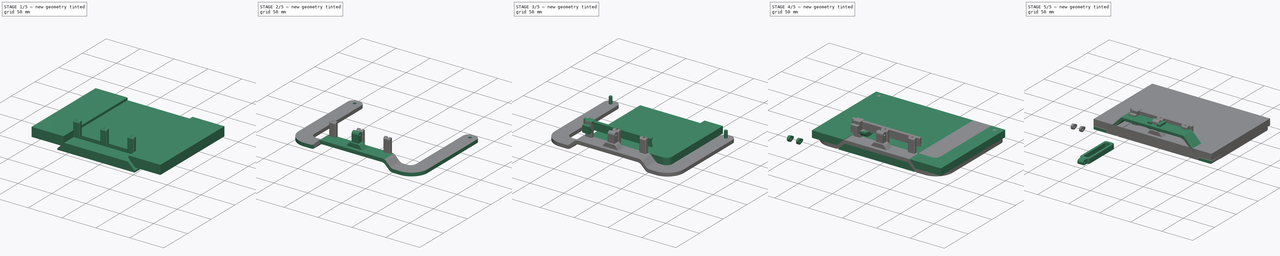
[diagram: build sequence overview — one tinted view per stage of 5, left to right]
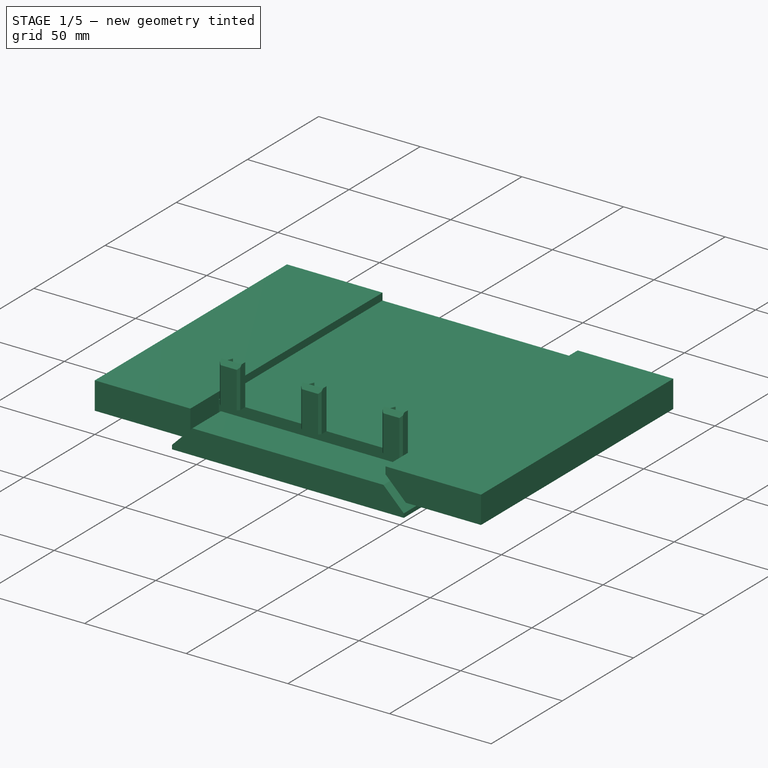
[diagram: stage 1 of 5 — iso view after this stage's code; geometry added in this stage tinted green]
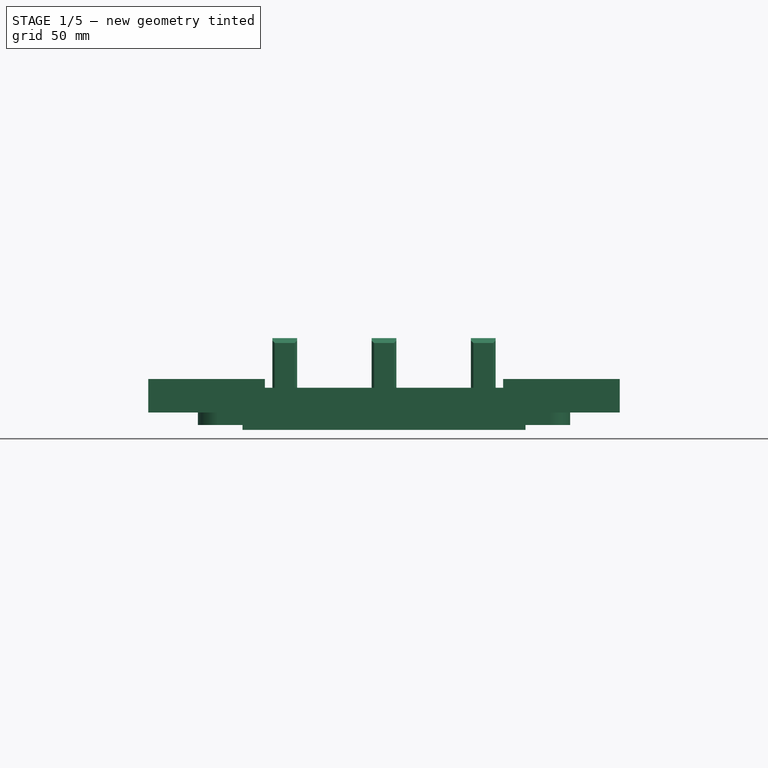
[diagram: stage 1 of 5 — front view after this stage's code; geometry added in this stage tinted green]
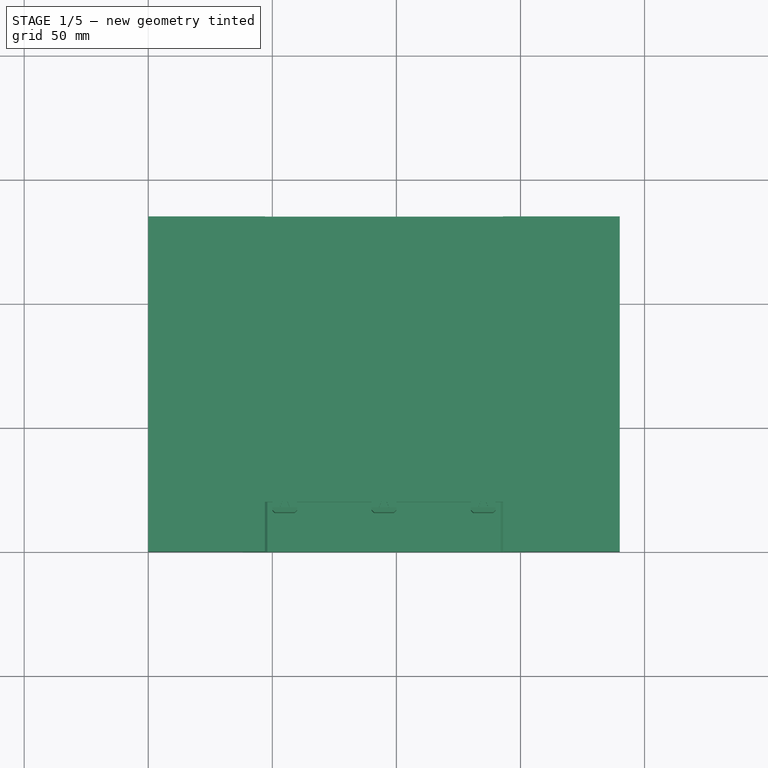
[diagram: stage 1 of 5 — top view after this stage's code; geometry added in this stage tinted green]
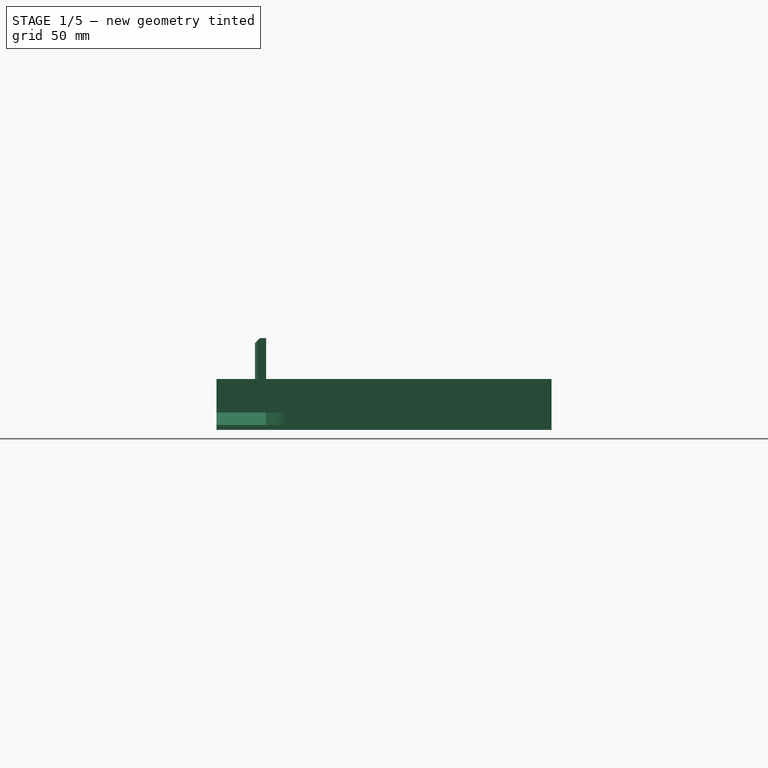
[diagram: stage 1 of 5 — right view after this stage's code; geometry added in this stage tinted green]
FCSTD DOCUMENT  (FreeCAD 1.1R44227 +322 (Git))
Label: Bed Handle with PiCam Mount and LED Fixture
License: All rights reserved
LicenseURL: http://en.wikipedia.org/wiki/All_rights_reserved
objects: Part::Box×32, Part::FeaturePython×23, Part::Fillet×20, Part::Chamfer×18, Part::Cylinder×6, Part::Feature×6, Part::Cut×6, Sketcher::SketchObject×3, Part::Face×3, App::DocumentObjectGroup×3, Part::MultiFuse×2, Part::Compound×2
note: 124 computed .brp shape members not serialized (recipe doc carries the construction recipe); baked Part::Feature solids carry a one-line shape summary decoded from their .brp

FEATURE [Part::Box] Box002  label="Cube002"
  AttacherType = Attacher::AttachEngine3D
  Height = 12
  Length = 114
  Placement = pos=(38,0,-2) rot=(0,0,1;0rad)
  Width = 135
FEATURE [Part::Box] Box003  label="Cube003"
  AttacherType = Attacher::AttachEngine3D
  Height = 13.5
  Length = 47
  Placement = pos=(0,0,5) rot=(0,0,1;0rad)
  Width = 135
FEATURE [Part::Box] Box004  label="Cube004"
  AttacherType = Attacher::AttachEngine3D
  Height = 13.5
  Length = 47
  Placement = pos=(143,0,5) rot=(0,0,1;0rad)
  Width = 135
FEATURE [Part::Box] Box005  label="Cube005"
  AttacherType = Attacher::AttachEngine3D
  Height = 15
  Length = 150
  Placement = pos=(20,20,0) rot=(0,0,1;0rad)
  Width = 115
FEATURE [Part::Box] Box019  label="Cube019"
  AttacherType = Attacher::AttachEngine3D
  Height = 20
  Length = 10
  Placement = pos=(50,15.5,15) rot=(0,0,1;0rad)
  Width = 4.5
FEATURE [Part::Chamfer] Chamfer024
  Base = -> Box004
  EdgeLinks = -> Box004 [Edge4]
  Edges = 1 edges r=10: [Edge4]
FEATURE [Part::Chamfer] Chamfer
  Base = -> Box002
  EdgeLinks = -> Box002 [Edge2,Edge6]
  Edges = 2 edges r=10: [Edge2,Edge6]
FEATURE [Part::Fillet] Fillet
  Base = -> Box005
  EdgeLinks = -> Box005 [Edge1,Edge5]
  Edges = 2 edges r=8: [Edge1,Edge5]
FEATURE [Part::Chamfer] Chamfer025
  Base = -> Box019
  EdgeLinks = -> Box019 [Edge1,Edge5,Edge10]
  Edges = 3 edges: [Edge1 r=1,Edge5 r=1,Edge10 r=2]
FEATURE [Part::Box] Box024  label="Cube024"
  AttacherType = Attacher::AttachEngine3D
  Height = 6
  Length = 4
  Placement = pos=(53,17.5,29) rot=(0,0,1;0rad)
  Width = 2.5
FEATURE [Part::Chamfer] Chamfer028
  Base = -> Box024
  EdgeLinks = -> Box024 [Edge3,Edge7]
  Edges = 2 edges: [Edge3 r1=2.49 r2=1,Edge7 r1=2.49 r2=1]
FEATURE [Part::Cut] Cut001006
  Base = -> Chamfer025
  Tool = -> Chamfer028
FEATURE [Part::Box] Box034  label="Cube034"
  AttacherType = Attacher::AttachEngine3D
  Height = 20
  Length = 10
  Placement = pos=(50,15.5,15) rot=(0,0,1;0rad)
  Width = 4.5
FEATURE [Part::Box] Box035  label="Cube035"
  AttacherType = Attacher::AttachEngine3D
  Height = 6
  Length = 4
  Placement = pos=(53,17.5,29) rot=(0,0,1;0rad)
  Width = 2.5
FEATURE [Part::Chamfer] Chamfer030
  Base = -> Box035
  EdgeLinks = -> Box035 [Edge3,Edge7]
  Edges = 2 edges: [Edge3 r1=2.49 r2=1,Edge7 r1=2.49 r2=1]
FEATURE [Part::Chamfer] Chamfer032
  Base = -> Box034
  EdgeLinks = -> Box034 [Edge1,Edge5,Edge10]
  Edges = 3 edges: [Edge1 r=1,Edge5 r=1,Edge10 r=2]
FEATURE [Part::Cut] Cut001007
  Base = -> Chamfer032
  Placement = pos=(40,0,0) rot=(0,0,1;0rad)
  Tool = -> Chamfer030
FEATURE [Part::Box] Box037  label="Cube037"
  AttacherType = Attacher::AttachEngine3D
  Height = 20
  Length = 10
  Placement = pos=(50,15.5,15) rot=(0,0,1;0rad)
  Width = 4.5
FEATURE [Part::Box] Box038  label="Cube038"
  AttacherType = Attacher::AttachEngine3D
  Height = 6
  Length = 4
  Placement = pos=(53,17.5,29) rot=(0,0,1;0rad)
  Width = 2.5
FEATURE [Part::Chamfer] Chamfer033
  Base = -> Box038
  EdgeLinks = -> Box038 [Edge3,Edge7]
  Edges = 2 edges: [Edge3 r1=2.49 r2=1,Edge7 r1=2.49 r2=1]
FEATURE [Part::Chamfer] Chamfer035
  Base = -> Box037
  EdgeLinks = -> Box037 [Edge1,Edge5,Edge10]
  Edges = 3 edges: [Edge1 r=1,Edge5 r=1,Edge10 r=2]
FEATURE [Part::Cut] Cut001008
  Base = -> Chamfer035
  Placement = pos=(80,0,0) rot=(0,0,1;0rad)
  Tool = -> Chamfer033
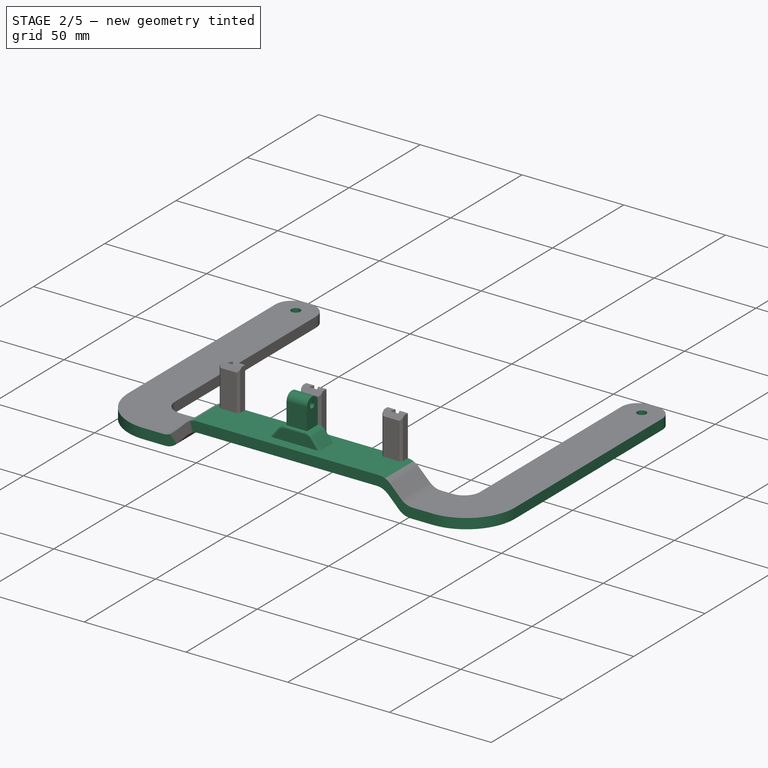
[diagram: stage 2 of 5 — iso view after this stage's code; geometry added in this stage tinted green]
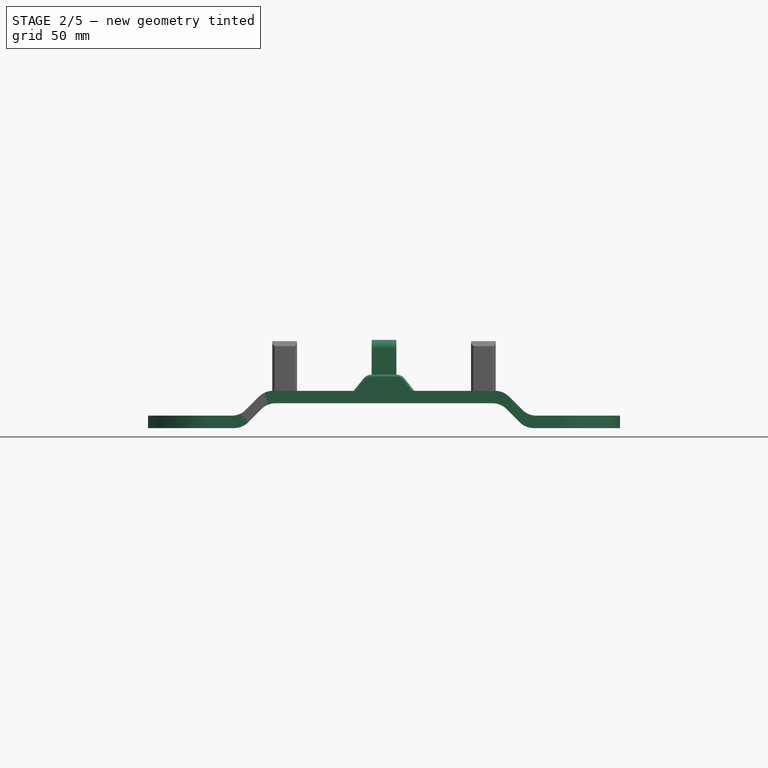
[diagram: stage 2 of 5 — front view after this stage's code; geometry added in this stage tinted green]
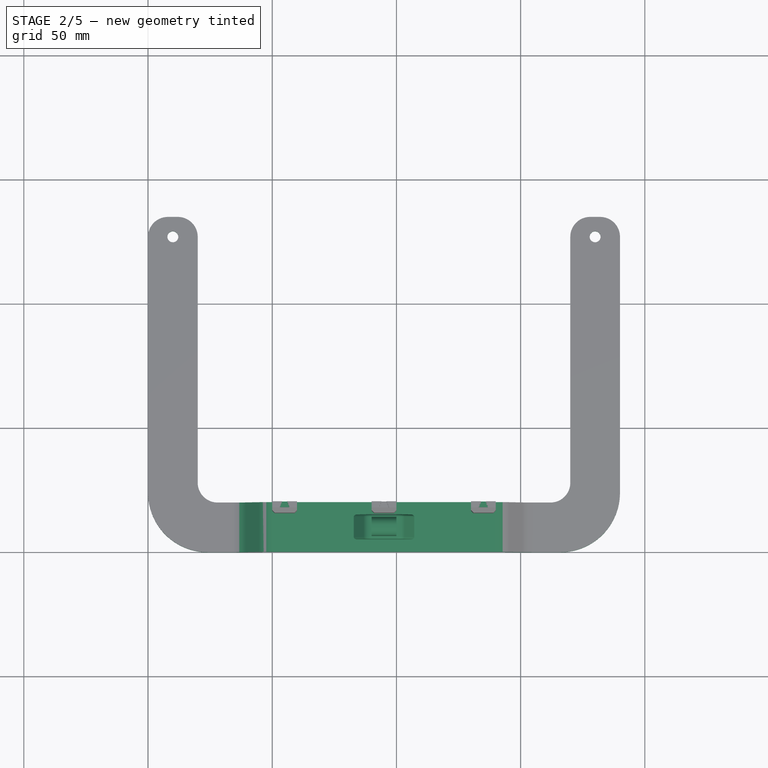
[diagram: stage 2 of 5 — top view after this stage's code; geometry added in this stage tinted green]
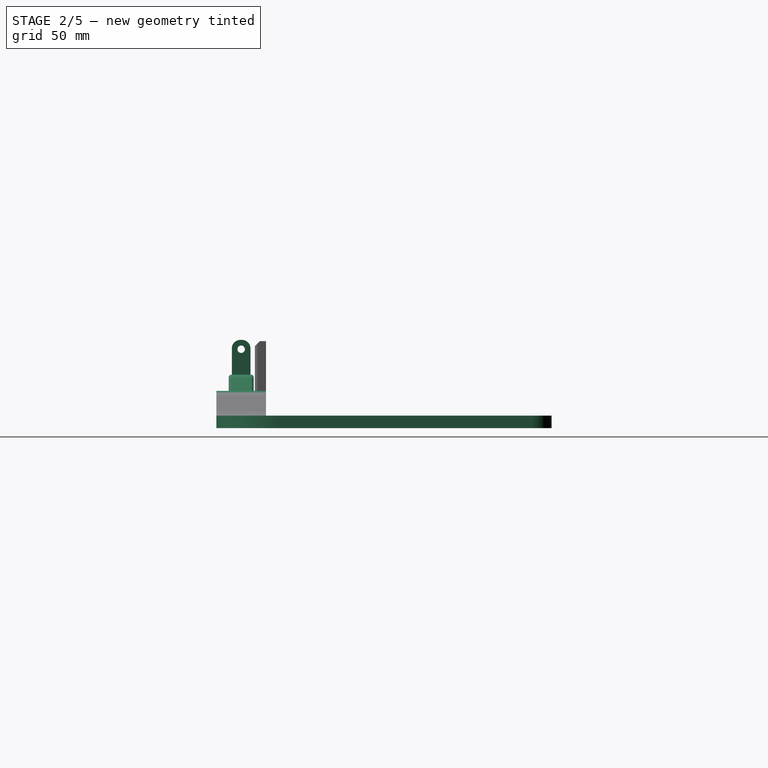
[diagram: stage 2 of 5 — right view after this stage's code; geometry added in this stage tinted green]
FEATURE [Part::Box] Box  label="Cube"
  AttacherType = Attacher::AttachEngine3D
  Height = 15
  Length = 190
  Width = 135
FEATURE [Part::Cylinder] Cylinder
  Angle = 360
  AttacherType = Attacher::AttachEngine3D
  FirstAngle = 0
  Height = 40
  Placement = pos=(10,77,0) rot=(0,0,1;0rad)
  Radius = 2.2
  SecondAngle = 0
FEATURE [Part::Cylinder] Cylinder001
  Angle = 360
  AttacherType = Attacher::AttachEngine3D
  FirstAngle = 0
  Height = 40
  Placement = pos=(180,77,0) rot=(0,0,1;0rad)
  Radius = 2.2
  SecondAngle = 0
FEATURE [Part::MultiFuse] Fusion
  Placement = pos=(0,50,0) rot=(0,0,1;0rad)
  Shapes = -> [Cylinder,Cylinder001]
FEATURE [Part::Box] Box022  label="Cube022"
  AttacherType = Attacher::AttachEngine3D
  Height = 15
  Length = 10
  Placement = pos=(90,6.25,17) rot=(0,0,1;0rad)
  Width = 7.5
FEATURE [Part::Cylinder] Cylinder005
  Angle = 360
  AttacherType = Attacher::AttachEngine3D
  FirstAngle = 0
  Height = 10
  Placement = pos=(90,10,28.25) rot=(0,1,0;1.5708rad)
  Radius = 1.5
  SecondAngle = 0
FEATURE [Part::Cut] Cut001005
  Base = -> Box022
  Tool = -> Cylinder005
FEATURE [Part::Fillet] Fillet002008005014
  Base = -> Cut001005
  EdgeLinks = -> Cut001005 [Edge8,Edge9]
  Edges = 2 edges r=3.4: [Edge8,Edge9]
  Placement = pos=(0,0,3.5) rot=(0,0,1;0rad)
FEATURE [Part::Box] Box023  label="Cube023"
  AttacherType = Attacher::AttachEngine3D
  Height = 11.5
  Length = 30
  Placement = pos=(80,5,3) rot=(0,0,1;0rad)
  Width = 10
FEATURE [Part::Chamfer] Chamfer019
  Base = -> Box023
  EdgeLinks = -> Box023 [Edge2,Edge6]
  Edges = 2 edges: [Edge2 r1=10 r2=8,Edge6 r1=10 r2=8]
FEATURE [Part::Fillet] Fillet002008005015
  Base = -> Chamfer019
  EdgeLinks = -> Chamfer019 [Edge10,Edge18]
  Edges = 2 edges r=4: [Edge10,Edge18]
FEATURE [Part::Fillet] Fillet002008005016
  Base = -> Fillet002008005015
  EdgeLinks = -> Fillet002008005015 [Edge8,Edge6,Edge4,Edge2,Edge1,Edge24,Edge21,Edge16,Edge13,Edge11]
  Edges = 10 edges r=1: [Edge8,Edge6,Edge4,Edge2,Edge1,Edge24,Edge21,Edge16,Edge13,Edge11]
  Placement = pos=(0,0,7) rot=(0,0,1;0rad)
FEATURE [Part::Chamfer] Chamfer023
  Base = -> Box003
  EdgeLinks = -> Box003 [Edge8]
  Edges = 1 edges r=10: [Edge8]
FEATURE [Part::FeaturePython] Slice  # WARN: FeaturePython — macro-defined, semantics opaque (R4)
  Base = -> Box
  Mode = 1
  Tolerance = 0
  Tools = -> [Fusion,Chamfer023,Chamfer024,Chamfer,Fillet]
FEATURE [Part::FeaturePython] Slice_child0  label="Slice.0"  # WARN: FeaturePython — macro-defined, semantics opaque (R4)
  Base = -> Slice
  FilterType = 1
  Invert = false
  OverrideMaxVal = 0
  WindowFrom = 80
  WindowTo = 100
  items = 0
FEATURE [App::DocumentObjectGroup] GrExplode_Slice  label="Exploded Slice"
  Group = -> [Slice_child0,Slice_child1,Slice_child2,Slice_child3,Slice_child4,Slice_child5,Slice_child6,Slice_child7,Slice_child8,Slice_child9,Slice_child10,Slice_child11]
FEATURE [Part::Fillet] Fillet002008005017
  Base = -> Slice_child0
  EdgeLinks = -> Slice_child0 [Edge3,Edge23,Edge42,Edge59]
  Edges = 4 edges r=8: [Edge3,Edge23,Edge42,Edge59]
FEATURE [Part::Fillet] Fillet002008005018
  Base = -> Fillet002008005017
  EdgeLinks = -> Fillet002008005017 [Edge3,Edge21]
  Edges = 2 edges r=24: [Edge3,Edge21]
FEATURE [Part::Fillet] Fillet002008005019
  Base = -> Fillet002008005018
  EdgeLinks = -> Fillet002008005018 [Edge9,Edge21,Edge38,Edge51,Edge52,Edge53,Edge54,Edge63]
  Edges = 8 edges r=8: [Edge9,Edge21,Edge38,Edge51,Edge52,Edge53,Edge54,Edge63]
FEATURE [Part::Box] Box036  label="Cube036"
  AttacherType = Attacher::AttachEngine3D
  Height = 5.8
  Length = 3.6
  Placement = pos=(53.2,17.7,24.2) rot=(0,0,1;0rad)
  Width = 2.3
FEATURE [Part::Box] Box039  label="Cube039"
  AttacherType = Attacher::AttachEngine3D
  Height = 5.8
  Length = 3.6
  Placement = pos=(53.2,17.7,24.2) rot=(0,0,1;0rad)
  Width = 2.3
FEATURE [Part::Chamfer] Chamfer034
  Base = -> Box039
  EdgeLinks = -> Box039 [Edge3,Edge7]
  Edges = 2 edges: [Edge3 r1=2.29 r2=1,Edge7 r1=2.29 r2=1]
  Placement = pos=(80,0,0) rot=(0,0,1;0rad)
FEATURE [Part::Compound] Compound001  label="Bed Handle with PiCam and LED Fixture Mounts"
  Links = -> [Fillet002008005014,Fillet002008005016,Fillet002008005019,Cut001006,Cut001007,Cut001008]
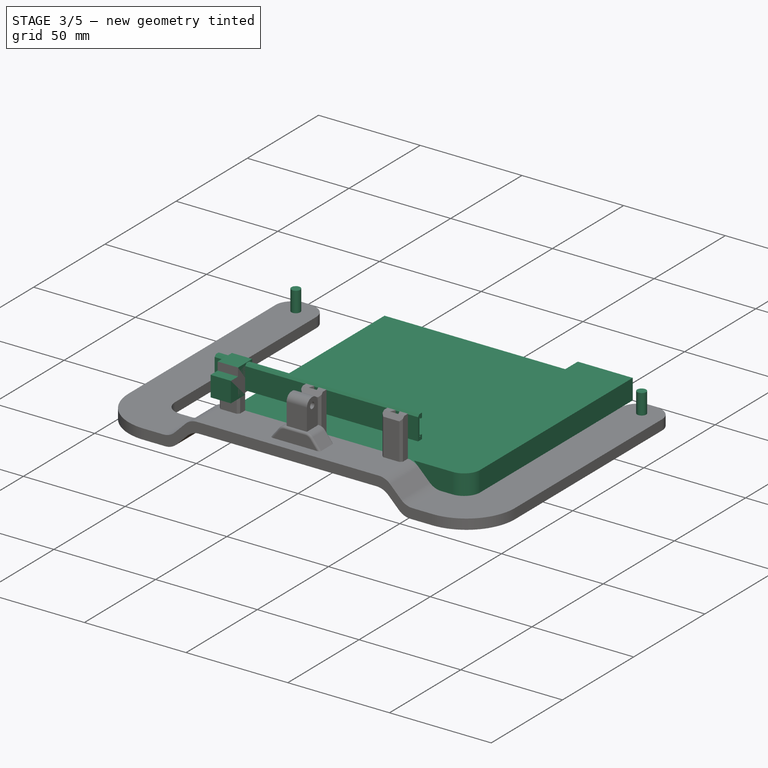
[diagram: stage 3 of 5 — iso view after this stage's code; geometry added in this stage tinted green]
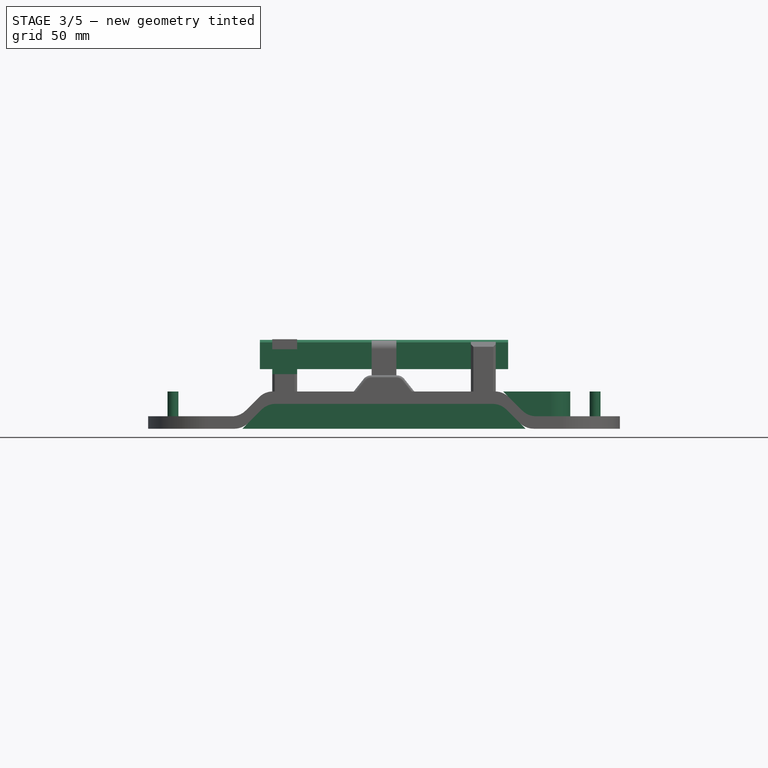
[diagram: stage 3 of 5 — front view after this stage's code; geometry added in this stage tinted green]
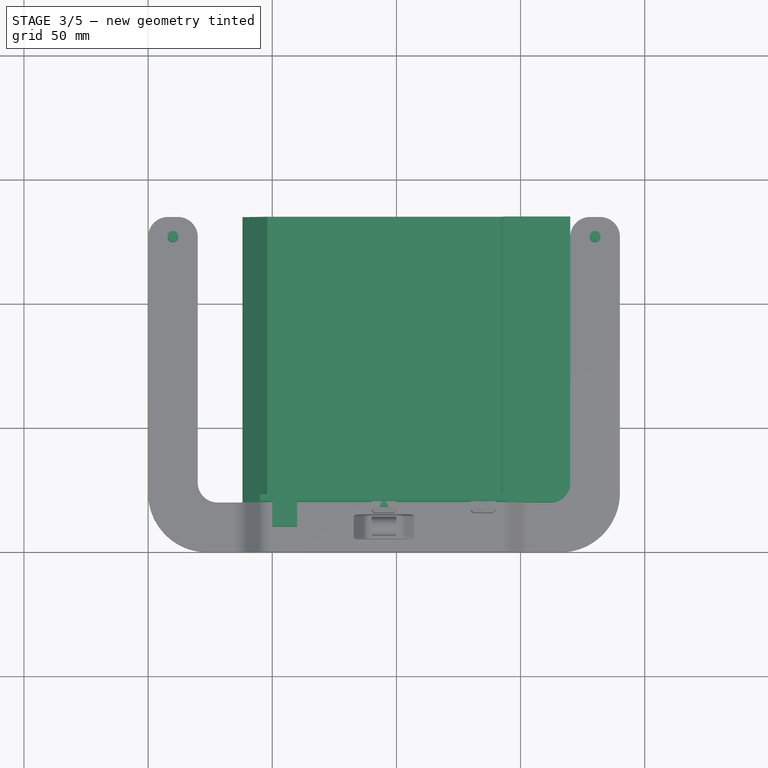
[diagram: stage 3 of 5 — top view after this stage's code; geometry added in this stage tinted green]
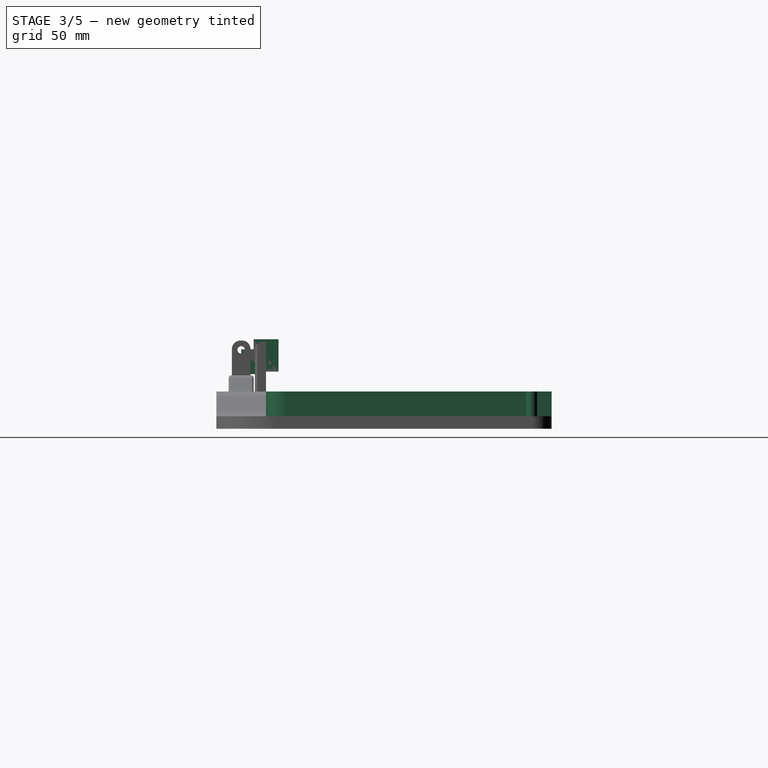
[diagram: stage 3 of 5 — right view after this stage's code; geometry added in this stage tinted green]
FEATURE [App::DocumentObjectGroup] GrExplode_Slice001  label="Exploded Slice001"
  Group = -> [Slice001_child0,Slice001_child1]
FEATURE [Part::Box] Box007  label="Cube007"
  AttacherType = Attacher::AttachEngine3D
  Height = 11.75
  Length = 100
  Placement = pos=(45,20,25) rot=(0,0,1;0rad)
  Width = 2.75
FEATURE [Part::Box] Box008  label="Cube008"
  AttacherType = Attacher::AttachEngine3D
  Height = 8.5
  Length = 100
  Placement = pos=(45,21,26.63) rot=(0,0,1;0rad)
  Width = 0.75
FEATURE [Part::Box] Box009  label="Cube009"
  AttacherType = Attacher::AttachEngine3D
  Height = 7.25
  Length = 100
  Placement = pos=(45,21.75,27.25) rot=(0,0,1;0rad)
  Width = 1
FEATURE [Part::FeaturePython] Slice005  # WARN: FeaturePython — macro-defined, semantics opaque (R4)
  Base = -> Box007
  Mode = 1
  Tolerance = 0
  Tools = -> [Box008,Box009]
FEATURE [Part::FeaturePython] Slice005_child0  label="Slice005.0"  # WARN: FeaturePython — macro-defined, semantics opaque (R4)
  Base = -> Slice005
  FilterType = 1
  Invert = false
  OverrideMaxVal = 0
  Placement = pos=(0,2.25,-1) rot=(0,0,1;0rad)
  WindowFrom = 80
  WindowTo = 100
  items = 0
FEATURE [Part::Box] Box020  label="Cube020"
  AttacherType = Attacher::AttachEngine3D
  Height = 15
  Length = 10
  Placement = pos=(90,17.5,15) rot=(0,0,1;0rad)
  Width = 2.5
FEATURE [Part::Box] Box021  label="Cube021"
  AttacherType = Attacher::AttachEngine3D
  Height = 15
  Length = 10
  Placement = pos=(130,17.5,15) rot=(0,0,1;0rad)
  Width = 2.5
FEATURE [Part::Chamfer] Chamfer016
  Base = -> Slice005_child0
  EdgeLinks = -> Slice005_child0 [Edge15]
  Edges = 1 edges r=1: [Edge15]
  Placement = pos=(0,-2.25,0) rot=(0,0,1;0rad)
FEATURE [Part::FeaturePython] Slice_child7  label="Slice.7"  # WARN: FeaturePython — macro-defined, semantics opaque (R4)
  Base = -> Slice
  FilterType = 1
  Invert = false
  OverrideMaxVal = 0
  WindowFrom = 80
  WindowTo = 100
  items = 7
FEATURE [Part::FeaturePython] Slice_child8  label="Slice.8"  # WARN: FeaturePython — macro-defined, semantics opaque (R4)
  Base = -> Slice
  FilterType = 1
  Invert = false
  OverrideMaxVal = 0
  WindowFrom = 80
  WindowTo = 100
  items = 8
FEATURE [Part::FeaturePython] Slice_child9  label="Slice.9"  # WARN: FeaturePython — macro-defined, semantics opaque (R4)
  Base = -> Slice
  FilterType = 1
  Invert = false
  OverrideMaxVal = 0
  WindowFrom = 80
  WindowTo = 100
  items = 9
FEATURE [Part::FeaturePython] Slice_child10  label="Slice.10"  # WARN: FeaturePython — macro-defined, semantics opaque (R4)
  Base = -> Slice
  FilterType = 1
  Invert = false
  OverrideMaxVal = 0
  WindowFrom = 80
  WindowTo = 100
  items = 10
FEATURE [Part::FeaturePython] Slice_child11  label="Slice.11"  # WARN: FeaturePython — macro-defined, semantics opaque (R4)
  Base = -> Slice
  FilterType = 1
  Invert = false
  OverrideMaxVal = 0
  WindowFrom = 80
  WindowTo = 100
  items = 11
FEATURE [Part::Chamfer] Chamfer026
  Base = -> Box020
  EdgeLinks = -> Box020 [Edge10]
  Edges = 1 edges r=2: [Edge10]
FEATURE [Part::Chamfer] Chamfer027
  Base = -> Box021
  EdgeLinks = -> Box021 [Edge10]
  Edges = 1 edges r=2: [Edge10]
FEATURE [Part::Box] Box025  label="Cube025"
  AttacherType = Attacher::AttachEngine3D
  Height = 5.8
  Length = 3.6
  Placement = pos=(53.2,17.7,24.2) rot=(0,0,1;0rad)
  Width = 2.3
FEATURE [Part::Chamfer] Chamfer029
  Base = -> Box025
  EdgeLinks = -> Box025 [Edge3,Edge7]
  Edges = 2 edges: [Edge3 r1=2.29 r2=1,Edge7 r1=2.29 r2=1]
FEATURE [Part::Box] Box032  label="Cube032"
  AttacherType = Attacher::AttachEngine3D
  Height = 10
  Length = 10
  Placement = pos=(50,10,22) rot=(0,0,1;0rad)
  Width = 10
FEATURE [Part::Box] Box033  label="Cube033"
  AttacherType = Attacher::AttachEngine3D
  Height = 13
  Length = 10
  Placement = pos=(50,15,23) rot=(0,0,1;0rad)
  Width = 10
FEATURE [Part::Chamfer] Chamfer031
  Base = -> Box036
  EdgeLinks = -> Box036 [Edge3,Edge7]
  Edges = 2 edges: [Edge3 r1=2.29 r2=1,Edge7 r1=2.29 r2=1]
  Placement = pos=(40,0,0) rot=(0,0,1;0rad)
FEATURE [Part::Compound] Compound  label="LED Rail"
  Links = -> [Chamfer029,Chamfer031,Chamfer034,Chamfer016]
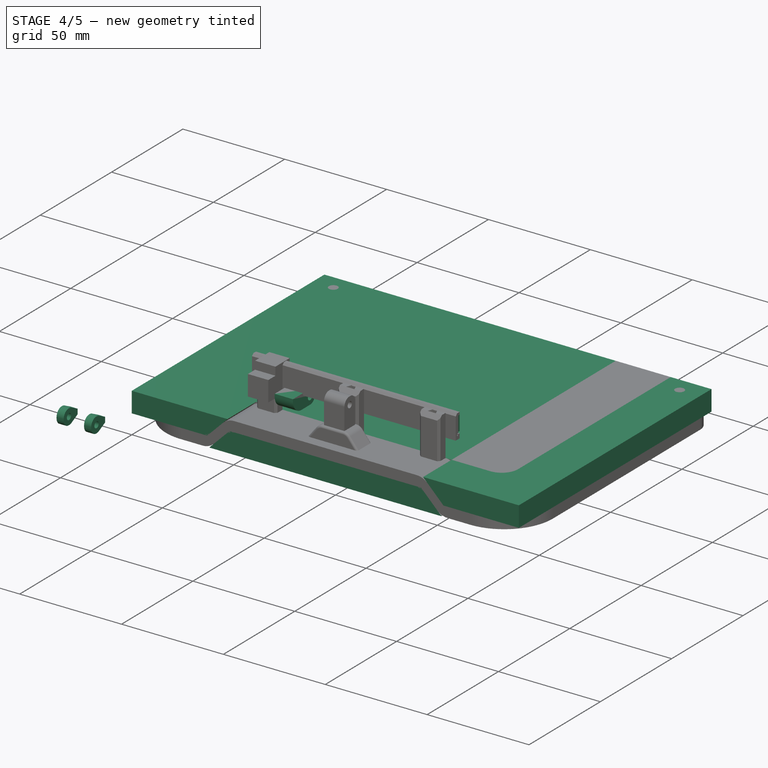
[diagram: stage 4 of 5 — iso view after this stage's code; geometry added in this stage tinted green]
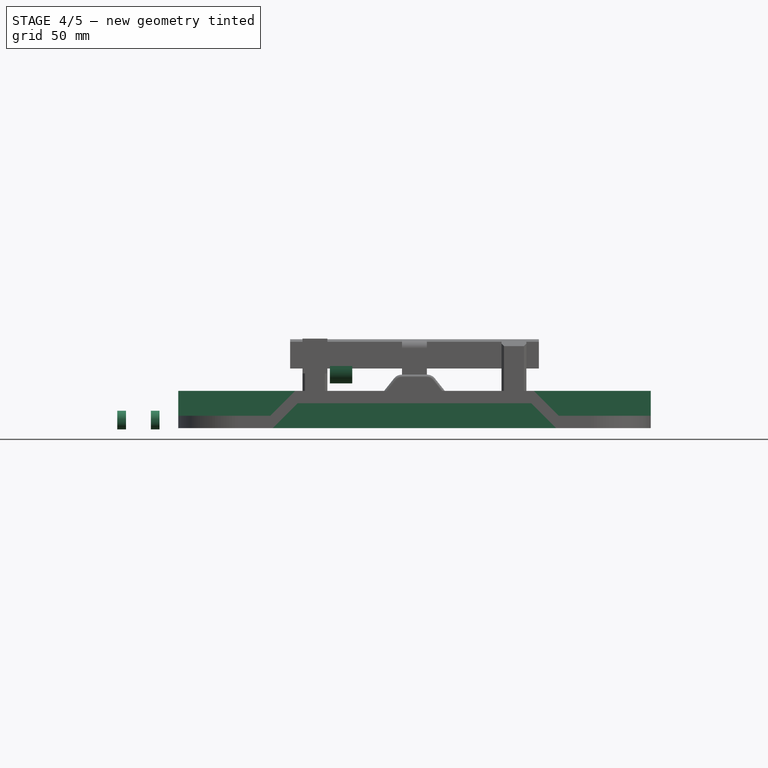
[diagram: stage 4 of 5 — front view after this stage's code; geometry added in this stage tinted green]
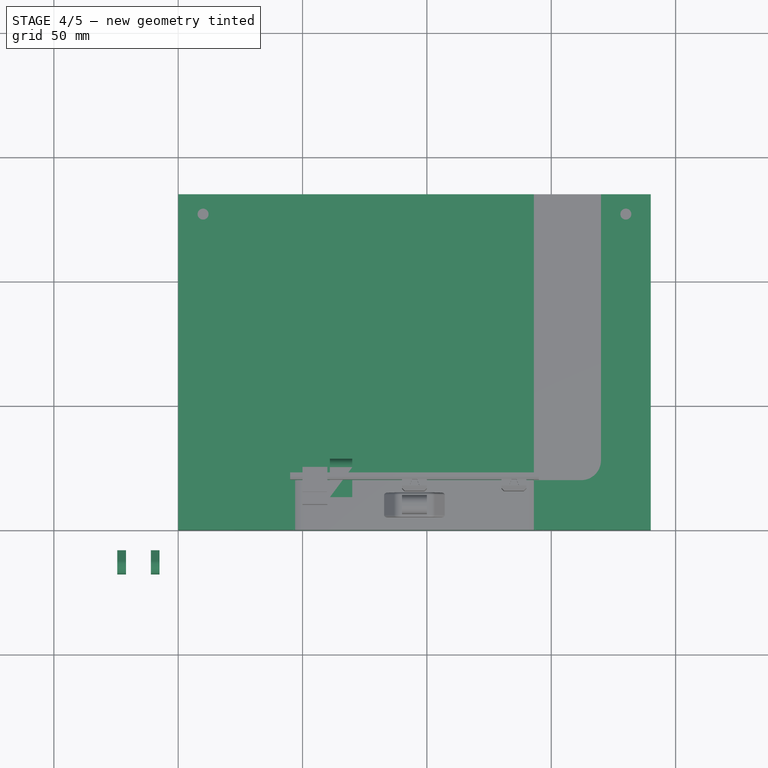
[diagram: stage 4 of 5 — top view after this stage's code; geometry added in this stage tinted green]
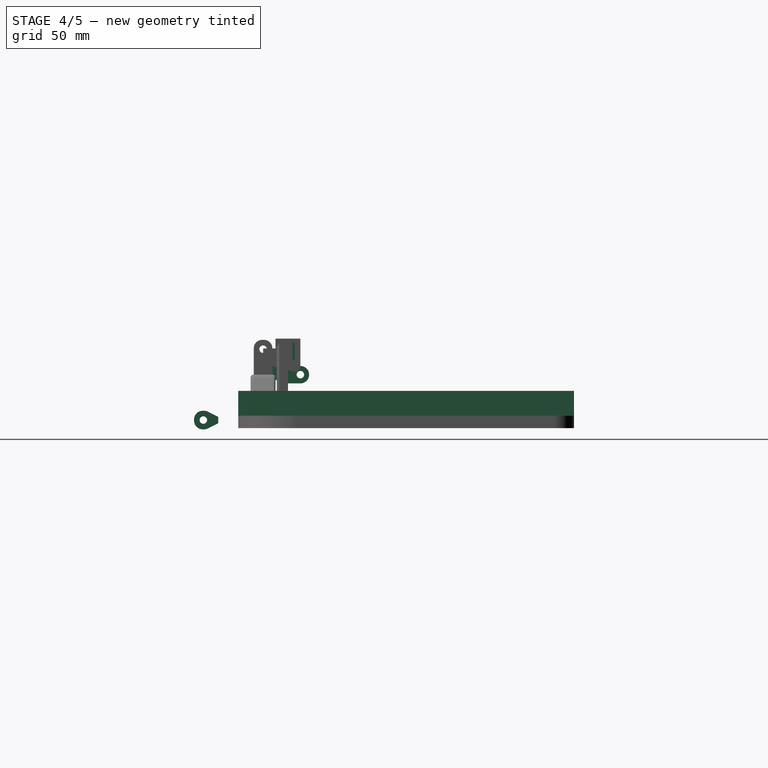
[diagram: stage 4 of 5 — right view after this stage's code; geometry added in this stage tinted green]
FEATURE [Sketcher::SketchObject] Sketch001
  ArcFitTolerance = 0
  ExternalTypes = [0]
  FullyConstrained = false
  MakeInternals = false
  Placement = pos=(0,0,0) rot=(0.57735,0.57735,0.57735;2.0944rad)
  sketch-geometry (4):
    g0: LineSegment StartX=17.9621 StartY=40.6139 StartZ=0 EndX=28.4032 EndY=40.6139 EndZ=0
    g1: LineSegment StartX=28.4032 StartY=40.6139 StartZ=0 EndX=28.4032 EndY=20.0858 EndZ=0
    g2: LineSegment StartX=28.4032 StartY=20.0858 StartZ=0 EndX=17.9621 EndY=20.0858 EndZ=0
    g3: LineSegment StartX=17.9621 StartY=20.0858 StartZ=0 EndX=17.9621 EndY=40.6139 EndZ=0
  constraints (8):
    c: Coincident(g0,g1)
    c: Coincident(g1,g2)
    c: Coincident(g2,g3)
    c: Coincident(g3,g0)
    c: Horizontal(g0)
    c: Horizontal(g2)
    c: Vertical(g1)
    c: Vertical(g3)
FEATURE [Part::Face] Face001
  FaceMakerClass = Part::FaceMakerBullseye
  Placement = pos=(70,0,0) rot=(0,0,1;0rad)
  Sources = -> [Sketch001]
FEATURE [Part::Box] Box010  label="Cube010"
  AttacherType = Attacher::AttachEngine3D
  Height = 7
  Length = 9
  Placement = pos=(61,13,18) rot=(0,0,1;0rad)
  Width = 15.5
FEATURE [Part::Cylinder] Cylinder002
  Angle = 360
  AttacherType = Attacher::AttachEngine3D
  FirstAngle = 0
  Height = 11
  Placement = pos=(59,25,21.5) rot=(0,1,0;1.5708rad)
  Radius = 1.5
  SecondAngle = 0
FEATURE [Part::Fillet] Fillet002008005010
  Base = -> Box010
  EdgeLinks = -> Box010 [Edge11,Edge12]
  Edges = 2 edges r=3.45: [Edge11,Edge12]
FEATURE [Part::Fillet] Fillet002008005011
  Base = -> Fillet002008005010
  EdgeLinks = -> Fillet002008005010 [Edge12]
  Edges = 1 edges r=6: [Edge12]
FEATURE [Part::Box] Box017  label="Cube017"
  AttacherType = Attacher::AttachEngine3D
  Height = 7.5
  Length = 17
  Placement = pos=(-24.5,-17.75,0) rot=(0,0,1;0rad)
  Width = 9.75
FEATURE [Part::Cylinder] Cylinder004
  Angle = 360
  AttacherType = Attacher::AttachEngine3D
  FirstAngle = 0
  Height = 17
  Placement = pos=(-24.5,-14,3.75) rot=(0,1,0;1.5708rad)
  Radius = 1.5
  SecondAngle = 0
FEATURE [Part::Fillet] Fillet002008005012
  Base = -> Box017
  EdgeLinks = -> Box017 [Edge9,Edge10]
  Edges = 2 edges r=3.5: [Edge9,Edge10]
FEATURE [Part::Chamfer] Chamfer013
  Base = -> Fillet002008005012
  EdgeLinks = -> Fillet002008005012 [Edge14,Edge16]
  Edges = 2 edges: [Edge14 r1=5 r2=2.5,Edge16 r1=5 r2=2.5]
FEATURE [Part::Fillet] Fillet002008005013
  Base = -> Chamfer013
  EdgeLinks = -> Chamfer013 [Edge9,Edge20]
  Edges = 2 edges r=3: [Edge9,Edge20]
FEATURE [Part::Box] Box018  label="Cube018"
  AttacherType = Attacher::AttachEngine3D
  Height = 10
  Length = 10
  Placement = pos=(-21,-18,0) rot=(0,0,1;0rad)
  Width = 10
FEATURE [Part::FeaturePython] Slice004  # WARN: FeaturePython — macro-defined, semantics opaque (R4)
  Base = -> Fillet002008005013
  Mode = 1
  Tolerance = 0
  Tools = -> [Cylinder004,Box018]
FEATURE [Part::FeaturePython] Slice004_child0  label="Slice004.0"  # WARN: FeaturePython — macro-defined, semantics opaque (R4)
  Base = -> Slice004
  FilterType = 1
  Invert = false
  OverrideMaxVal = 0
  Placement = pos=(0,0,-0.5) rot=(0,0,1;0rad)
  WindowFrom = 80
  WindowTo = 100
  items = 0
FEATURE [Part::FeaturePython] Slice004_child4  label="Slice004.4"  # WARN: FeaturePython — macro-defined, semantics opaque (R4)
  Base = -> Slice004
  FilterType = 1
  Invert = false
  OverrideMaxVal = 0
  Placement = pos=(0,0,-0.5) rot=(0,0,1;0rad)
  WindowFrom = 80
  WindowTo = 100
  items = 4
FEATURE [Part::FeaturePython] Slice005_child1  label="Slice005.1"  # WARN: FeaturePython — macro-defined, semantics opaque (R4)
  Base = -> Slice005
  FilterType = 1
  Invert = false
  OverrideMaxVal = 0
  WindowFrom = 80
  WindowTo = 100
  items = 1
FEATURE [Part::FeaturePython] Slice005_child2  label="Slice005.2"  # WARN: FeaturePython — macro-defined, semantics opaque (R4)
  Base = -> Slice005
  FilterType = 1
  Invert = false
  OverrideMaxVal = 0
  WindowFrom = 80
  WindowTo = 100
  items = 2
FEATURE [App::DocumentObjectGroup] GrExplode_Slice005  label="Exploded Slice005"
  Group = -> [Slice005_child0,Slice005_child1,Slice005_child2]
FEATURE [Part::Cut] Cut
  Base = -> Fillet002008005011
  Tool = -> Cylinder002
FEATURE [Part::FeaturePython] Slice_child1  label="Slice.1"  # WARN: FeaturePython — macro-defined, semantics opaque (R4)
  Base = -> Slice
  FilterType = 1
  Invert = false
  OverrideMaxVal = 0
  WindowFrom = 80
  WindowTo = 100
  items = 1
FEATURE [Part::FeaturePython] Slice_child2  label="Slice.2"  # WARN: FeaturePython — macro-defined, semantics opaque (R4)
  Base = -> Slice
  FilterType = 1
  Invert = false
  OverrideMaxVal = 0
  WindowFrom = 80
  WindowTo = 100
  items = 2
FEATURE [Part::FeaturePython] Slice_child3  label="Slice.3"  # WARN: FeaturePython — macro-defined, semantics opaque (R4)
  Base = -> Slice
  FilterType = 1
  Invert = false
  OverrideMaxVal = 0
  WindowFrom = 80
  WindowTo = 100
  items = 3
FEATURE [Part::FeaturePython] Slice_child4  label="Slice.4"  # WARN: FeaturePython — macro-defined, semantics opaque (R4)
  Base = -> Slice
  FilterType = 1
  Invert = false
  OverrideMaxVal = 0
  WindowFrom = 80
  WindowTo = 100
  items = 4
FEATURE [Part::FeaturePython] Slice_child5  label="Slice.5"  # WARN: FeaturePython — macro-defined, semantics opaque (R4)
  Base = -> Slice
  FilterType = 1
  Invert = false
  OverrideMaxVal = 0
  WindowFrom = 80
  WindowTo = 100
  items = 5
FEATURE [Part::FeaturePython] Slice_child6  label="Slice.6"  # WARN: FeaturePython — macro-defined, semantics opaque (R4)
  Base = -> Slice
  FilterType = 1
  Invert = false
  OverrideMaxVal = 0
  WindowFrom = 80
  WindowTo = 100
  items = 6
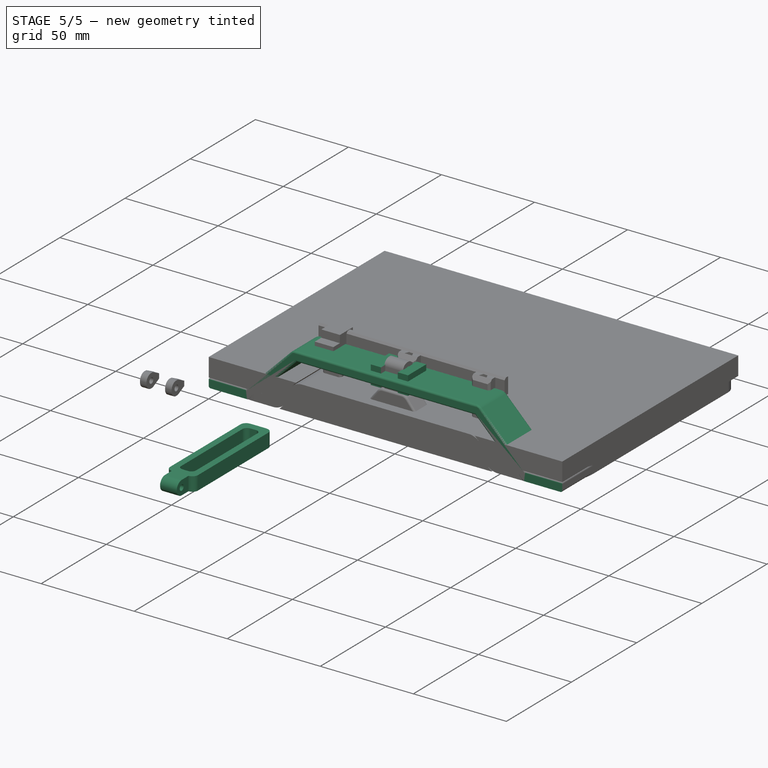
[diagram: stage 5 of 5 — iso view after this stage's code; geometry added in this stage tinted green]
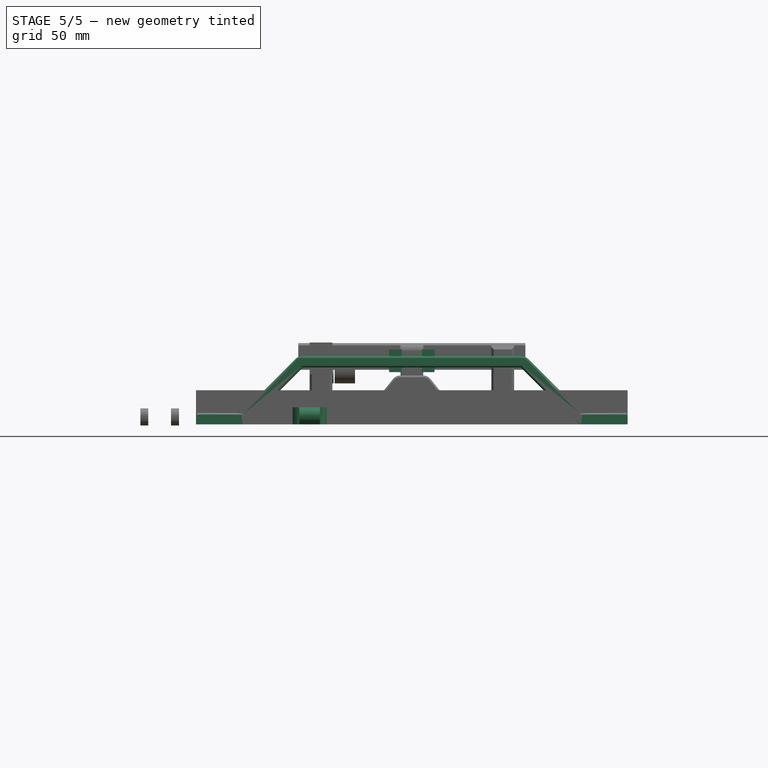
[diagram: stage 5 of 5 — front view after this stage's code; geometry added in this stage tinted green]
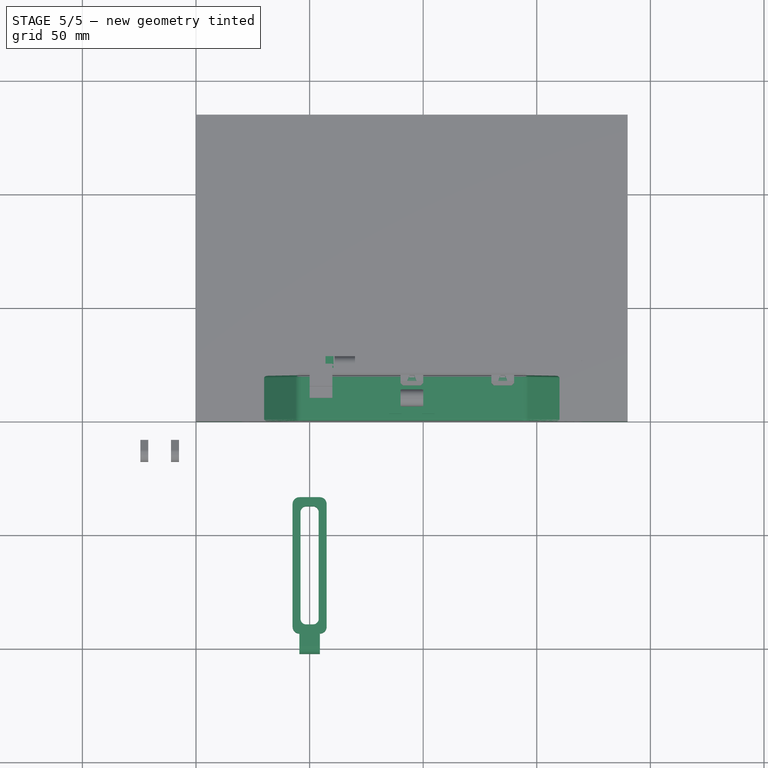
[diagram: stage 5 of 5 — top view after this stage's code; geometry added in this stage tinted green]
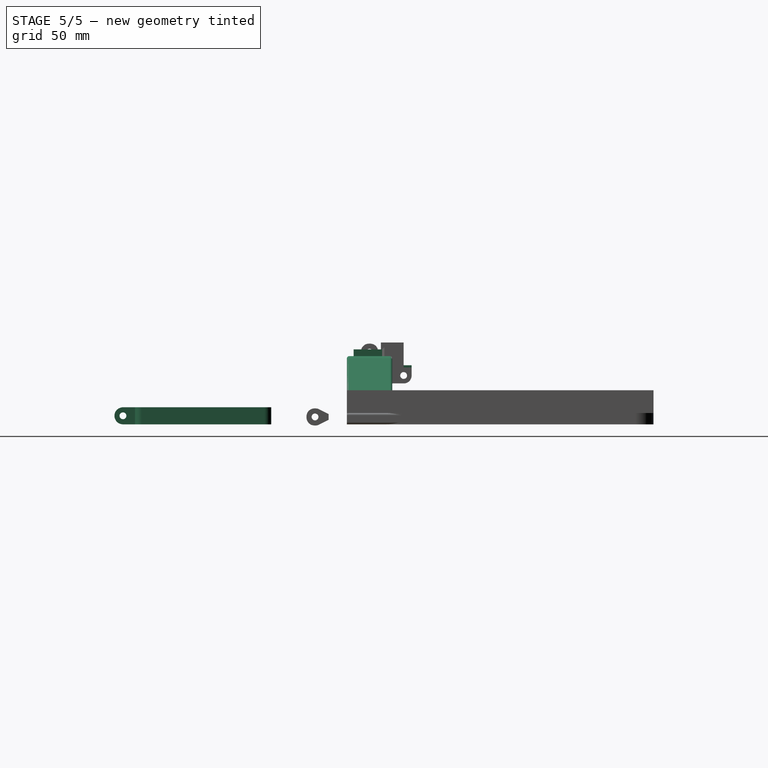
[diagram: stage 5 of 5 — right view after this stage's code; geometry added in this stage tinted green]
FEATURE [Part::Box] Box006  label="Cube006"
  AttacherType = Attacher::AttachEngine3D
  Height = 10
  Length = 25
  Placement = pos=(85,5,30) rot=(0,0,1;0rad)
  Width = 10
FEATURE [Part::Chamfer] Chamfer003
  Base = -> Box006
  EdgeLinks = -> Box006 [Edge2,Edge6]
  Edges = 2 edges r=7: [Edge2,Edge6]
FEATURE [Part::Fillet] Fillet002003
  Base = -> Chamfer003
  EdgeLinks = -> Chamfer003 [Edge10,Edge18]
  Edges = 2 edges r=8: [Edge10,Edge18]
  Placement = pos=(-7.5,0,-3) rot=(0,0,1;0rad)
FEATURE [Part::Feature] arm001001_solid  label="arm002 (Solid)"
  Placement = pos=(50,0,0) rot=(0,0,1;0rad)
  shape: bbox 15 x 77.99 x 7.5 mm, 944 faces (baked)
FEATURE [Sketcher::SketchObject] Sketch
  ArcFitTolerance = 0
  ExternalTypes = [0]
  FullyConstrained = false
  MakeInternals = false
  Placement = pos=(0,0,0) rot=(1,0,0;1.5708rad)
  sketch-geometry (4):
    g0: LineSegment StartX=40.7037 StartY=9.69127 StartZ=0 EndX=59.6286 EndY=9.69127 EndZ=0
    g1: LineSegment StartX=59.6286 StartY=9.69127 StartZ=0 EndX=59.6286 EndY=-1.52054 EndZ=0
    g2: LineSegment StartX=59.6286 StartY=-1.52054 StartZ=0 EndX=40.7037 EndY=-1.52054 EndZ=0
    g3: LineSegment StartX=40.7037 StartY=-1.52054 StartZ=0 EndX=40.7037 EndY=9.69127 EndZ=0
  constraints (8):
    c: Coincident(g0,g1)
    c: Coincident(g1,g2)
    c: Coincident(g2,g3)
    c: Coincident(g3,g0)
    c: Horizontal(g0)
    c: Horizontal(g2)
    c: Vertical(g1)
    c: Vertical(g3)
FEATURE [Part::Face] Face
  FaceMakerClass = Part::FaceMakerBullseye
  Placement = pos=(0,-33.25,0) rot=(0,0,1;0rad)
  Sources = -> [Sketch]
FEATURE [Part::FeaturePython] Slice001  # WARN: FeaturePython — macro-defined, semantics opaque (R4)
  Base = -> arm001001_solid
  Mode = 1
  Tolerance = 0
  Tools = -> [Face]
FEATURE [Part::FeaturePython] Slice001_child0  label="Slice001.0"  # WARN: FeaturePython — macro-defined, semantics opaque (R4)
  Base = -> Slice001
  FilterType = 1
  Invert = false
  OverrideMaxVal = 0
  WindowFrom = 80
  WindowTo = 100
  items = 0
FEATURE [Part::FeaturePython] Slice001_child1  label="Slice001.1"  # WARN: FeaturePython — macro-defined, semantics opaque (R4)
  Base = -> Slice001
  FilterType = 1
  Invert = false
  OverrideMaxVal = 0
  Placement = pos=(45,6.25,-8.25) rot=(-1,0,0;1.5708rad)
  WindowFrom = 80
  WindowTo = 100
  items = 1
FEATURE [Part::Box] Box011  label="Cube011"
  AttacherType = Attacher::AttachEngine3D
  Height = 7
  Length = 3.5
  Placement = pos=(57,19.5,18) rot=(0,0,1;0rad)
  Width = 7
FEATURE [Part::Cylinder] Cylinder003
  Angle = 360
  AttacherType = Attacher::AttachEngine3D
  FirstAngle = 0
  Height = 20
  Placement = pos=(56,23,21.5) rot=(0,1,0;1.5708rad)
  Radius = 1.5
  SecondAngle = 0
FEATURE [Sketcher::SketchObject] Sketch002
  ArcFitTolerance = 0
  ExternalTypes = [0]
  FullyConstrained = false
  MakeInternals = false
  sketch-geometry (4):
    g0: LineSegment StartX=-14.2585 StartY=92.9668 StartZ=0 EndX=204.898 EndY=92.9668 EndZ=0
    g1: LineSegment StartX=204.898 StartY=92.9668 StartZ=0 EndX=204.898 EndY=-10.442 EndZ=0
    g2: LineSegment StartX=204.898 StartY=-10.442 StartZ=0 EndX=-14.2585 EndY=-10.442 EndZ=0
    g3: LineSegment StartX=-14.2585 StartY=-10.442 StartZ=0 EndX=-14.2585 EndY=92.9668 EndZ=0
  constraints (8):
    c: Coincident(g0,g1)
    c: Coincident(g1,g2)
    c: Coincident(g2,g3)
    c: Coincident(g3,g0)
    c: Horizontal(g0)
    c: Horizontal(g2)
    c: Vertical(g1)
    c: Vertical(g3)
FEATURE [Part::Face] Face002
  FaceMakerClass = Part::FaceMakerBullseye
  Placement = pos=(0,0,16) rot=(0,0,1;0rad)
  Sources = -> [Sketch002]
FEATURE [Part::Fillet] Fillet002008002
  Base = -> Box011
  EdgeLinks = -> Box011 [Edge9,Edge10,Edge11]
  Edges = 3 edges r=3.45: [Edge9,Edge10,Edge11]
FEATURE [Part::Feature] Slice_child0001  label="Slice.012"
  shape: bbox 190 x 85 x 30 mm, 22 faces (baked)
FEATURE [Part::Fillet] Fillet002008005003
  Base = -> Slice_child0001
  EdgeLinks = -> Slice_child0001 [Edge12,Edge13,Edge14,Edge46,Edge49,Edge51]
  Edges = 6 edges r=1: [Edge12,Edge13,Edge14,Edge46,Edge49,Edge51]
FEATURE [Part::Fillet] Fillet002008005004
  Base = -> Fillet002008005003
  EdgeLinks = -> Fillet002008005003 [Edge2,Edge11,Edge20,Edge19,Edge25,Edge28,Edge41,Edge42,Edge50,Edge51]
  Edges = 10 edges r=1: [Edge2,Edge11,Edge20,Edge19,Edge25,Edge28,Edge41,Edge42,Edge50,Edge51]
FEATURE [Part::Fillet] Fillet002008005005
  Base = -> Fillet002008005004
  EdgeLinks = -> Fillet002008005004 [Edge8]
  Edges = 1 edges r=1: [Edge8]
FEATURE [Part::Fillet] Fillet002008005006
  Base = -> Fillet002008005005
  EdgeLinks = -> Fillet002008005005 [Edge2,Edge7]
  Edges = 2 edges r=1: [Edge2,Edge7]
FEATURE [Part::Fillet] Fillet002008005007
  Base = -> Fillet002008005006
  EdgeLinks = -> Fillet002008005006 [Edge89,Edge94]
  Edges = 2 edges r=4: [Edge89,Edge94]
FEATURE [Part::Fillet] Fillet002008005008
  Base = -> Fillet002003
  EdgeLinks = -> Fillet002003 [Edge2,Edge13]
  Edges = 2 edges r=1: [Edge2,Edge13]
  Placement = pos=(5,0,-22.5) rot=(0,0,1;0rad)
FEATURE [Part::Fillet] Fillet002008005009
  Base = -> Slice001_child1
  EdgeLinks = -> Slice001_child1 [Edge25,Edge125]
  Edges = 2 edges r=1: [Edge25,Edge125]
FEATURE [Part::Feature] Cut001004
  Placement = pos=(59,0,0) rot=(0,0,1;0rad)
  shape: bbox 9 x 15.5 x 7 mm, 10 faces (baked)
FEATURE [Part::Box] Box012  label="Cube012"
  AttacherType = Attacher::AttachEngine3D
  Height = 1
  Length = 3.5
  Placement = pos=(57,25,25) rot=(0,0,1;0rad)
  Width = 3.5
FEATURE [Part::Cut] Cut001
  Base = -> Fillet002008002
  Placement = pos=(0,2,0) rot=(0,0,1;0rad)
  Tool = -> Cylinder003
FEATURE [Part::MultiFuse] Fusion001
  Shapes = -> [Cut001,Box012]
FEATURE [Part::Feature] Fusion001001
  Placement = pos=(13.5,0,0) rot=(0,0,1;0rad)
  shape: bbox 3.5 x 7 x 8 mm, 15 faces (baked)
FEATURE [Part::Feature] Fusion001002
  Placement = pos=(59,0,0) rot=(0,0,1;0rad)
  shape: bbox 3.5 x 7 x 8 mm, 15 faces (baked)
FEATURE [Part::Feature] Fusion001003
  Placement = pos=(72.5,0,0) rot=(0,0,1;0rad)
  shape: bbox 3.5 x 7 x 8 mm, 15 faces (baked)
FEATURE [Part::Box] Box013  label="Cube013"
  AttacherType = Attacher::AttachEngine3D
  Height = 10
  Length = 5.5
  Placement = pos=(85,3,23) rot=(0,0,1;0rad)
  Width = 14
FEATURE [Part::Box] Box014  label="Cube014"
  AttacherType = Attacher::AttachEngine3D
  Height = 10
  Length = 5.5
  Placement = pos=(99.5,3,23) rot=(0,0,1;0rad)
  Width = 14
FEATURE [Part::Box] Box015  label="Cube015"
  AttacherType = Attacher::AttachEngine3D
  Height = 3.5
  Length = 26
  Placement = pos=(82,3,26.5) rot=(0,0,1;0rad)
  Width = 14
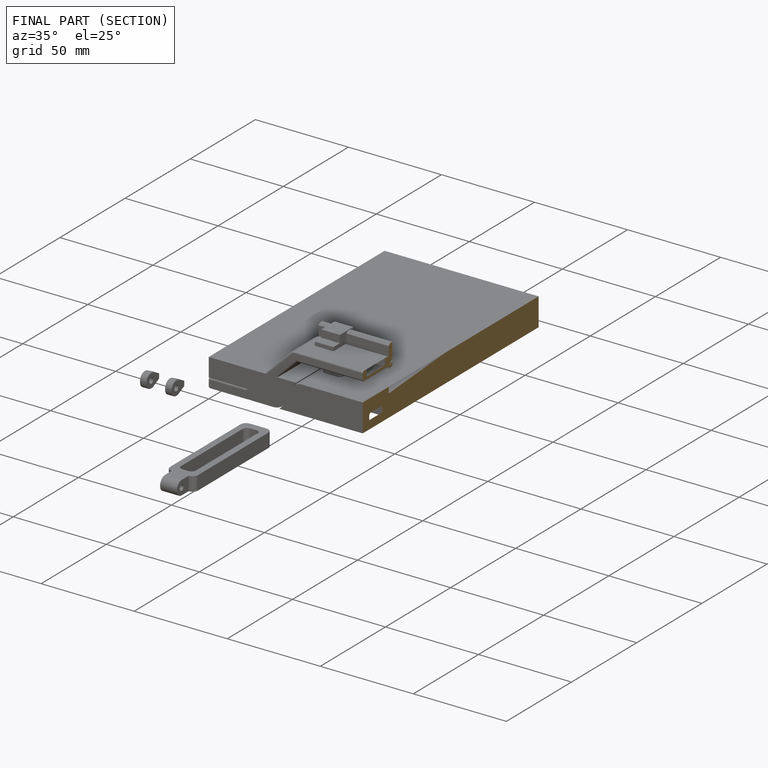
[diagram: finished part — half-section view (interior)]
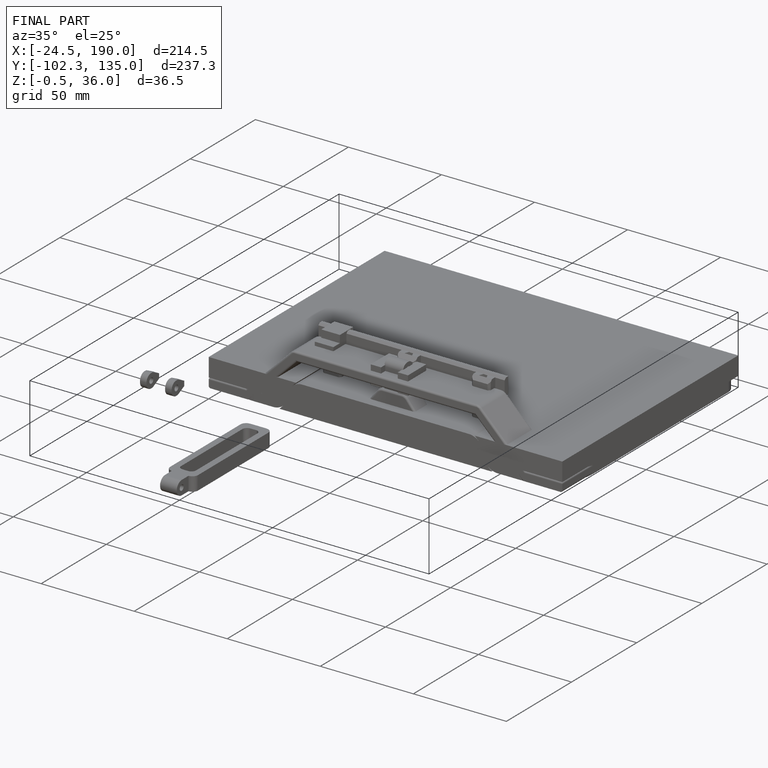
[diagram: finished part — iso view with bounding-box wireframe]
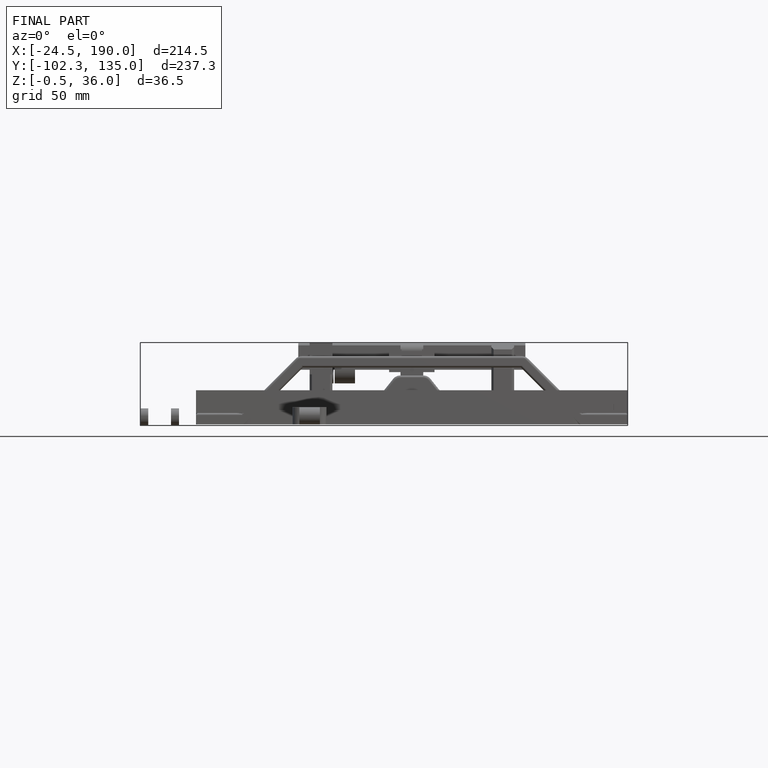
[diagram: finished part — front view with bounding-box wireframe]
